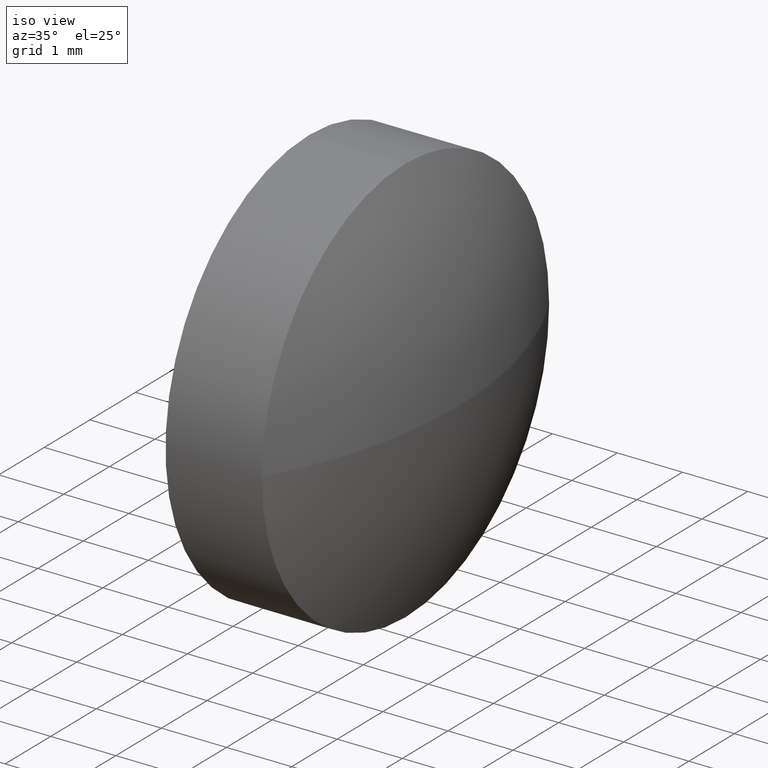
[diagram: clean part render]
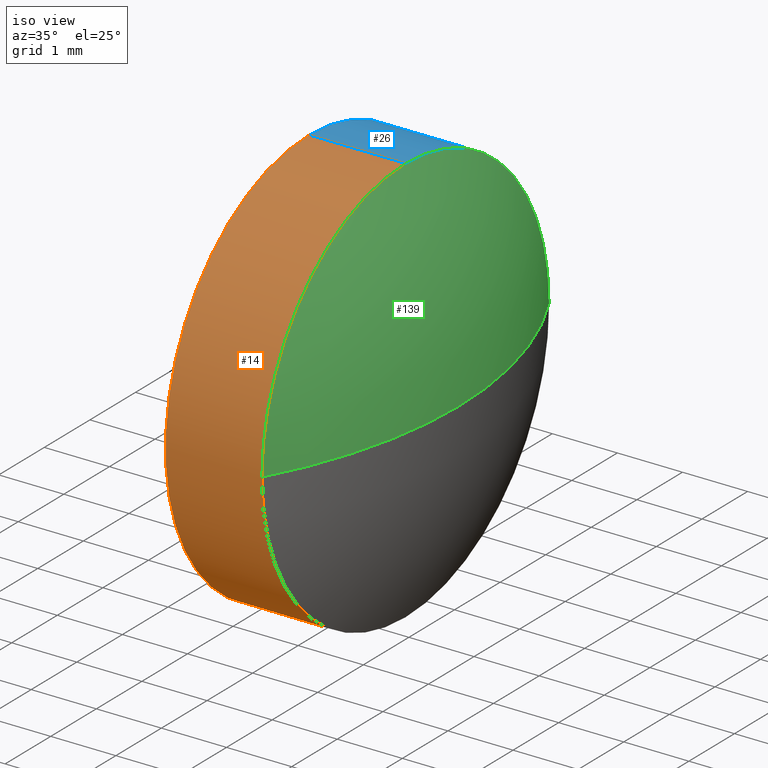
[diagram: same view with three faces highlighted in distinct colors, each labeled with its STEP entity id]
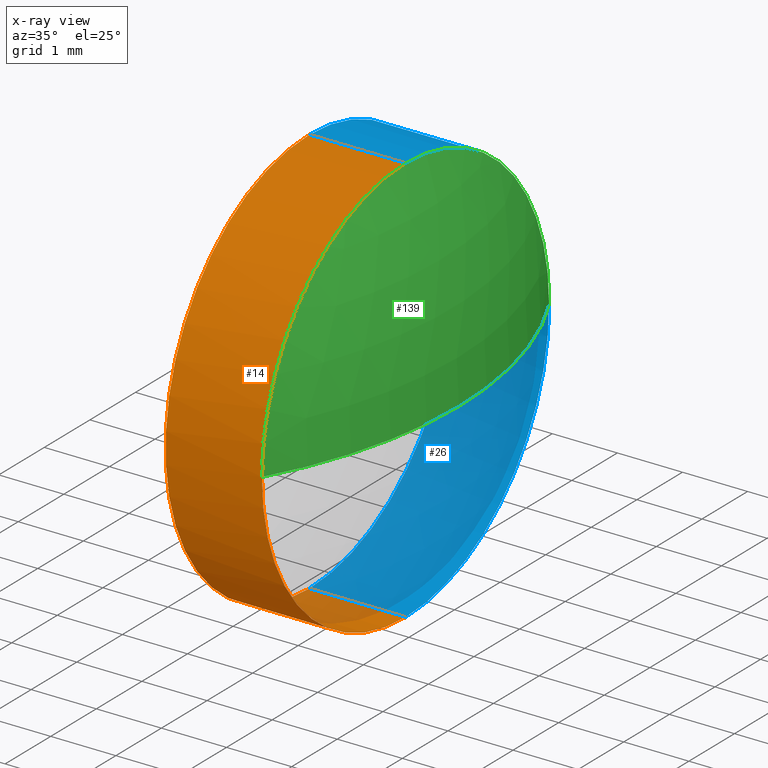
[diagram: x-ray of the same camera — body ghosted, the three highlighted faces saturated]
A machine part, iso view with three faces highlighted in distinct colors.
The next image is the same camera in x-ray (body ghosted, the three faces saturated) — at least one of them is partly hidden behind the body in this view.
Their STEP definitions:

[orange] entity #14 — the highlighted cylindrical surface (partial cylindrical patch) has radius 3.15 mm, axis along (-1, -0, -0).
#6 = CARTESIAN_POINT ( 'NONE',  ( 533.7935078641276000, 77.22052637251874800, 0.0000000000000000000 ) ) ;
#11 = EDGE_CURVE ( 'NONE', #169, #25, #64, .T. ) ;
#12 = VECTOR ( 'NONE', #132, 1000.000000000000000 ) ;
#14 = ADVANCED_FACE ( 'NONE', ( #55 ), #92, .T. ) ;
#17 = VERTEX_POINT ( 'NONE', #128 ) ;
#19 = DIRECTION ( 'NONE',  ( -1.000000000000000000, -0.0000000000000000000, -0.0000000000000000000 ) ) ;
#20 = CARTESIAN_POINT ( 'NONE',  ( 532.3135078641275900, 77.22052637251874800, -3.149999999999999900 ) ) ;
#21 = VERTEX_POINT ( 'NONE', #62 ) ;
#25 = VERTEX_POINT ( 'NONE', #111 ) ;
#28 = VECTOR ( 'NONE', #34, 1000.000000000000000 ) ;
#30 = AXIS2_PLACEMENT_3D ( 'NONE', #35, #50, #153 ) ;
#34 = DIRECTION ( 'NONE',  ( -1.000000000000000000, -0.0000000000000000000, -0.0000000000000000000 ) ) ;
#35 = CARTESIAN_POINT ( 'NONE',  ( 533.7935078641276000, 77.22052637251874800, 0.0000000000000000000 ) ) ;
#40 = LINE ( 'NONE', #87, #12 ) ;
#43 = AXIS2_PLACEMENT_3D ( 'NONE', #6, #121, #120 ) ;
#45 = CARTESIAN_POINT ( 'NONE',  ( 531.4518796945430900, 77.22052637251874800, 3.149999999999999900 ) ) ;
#49 = CIRCLE ( 'NONE', #30, 3.149999999999999900 ) ;
#50 = DIRECTION ( 'NONE',  ( -1.000000000000000000, -0.0000000000000000000, -0.0000000000000000000 ) ) ;
#55 = FACE_OUTER_BOUND ( 'NONE', #98, .T. ) ;
#62 = CARTESIAN_POINT ( 'NONE',  ( 533.7935078641276000, 77.22052637251874800, -3.149999999999999900 ) ) ;
#63 = DIRECTION ( 'NONE',  ( 0.0000000000000000000, 0.0000000000000000000, 1.000000000000000000 ) ) ;
#64 = LINE ( 'NONE', #45, #28 ) ;
#74 = AXIS2_PLACEMENT_3D ( 'NONE', #168, #149, #63 ) ;
#87 = CARTESIAN_POINT ( 'NONE',  ( 531.4518796945430900, 77.22052637251874800, -3.149999999999999900 ) ) ;
#92 = CYLINDRICAL_SURFACE ( 'NONE', #142, 3.149999999999999900 ) ;
#97 = CIRCLE ( 'NONE', #43, 3.149999999999999900 ) ;
#98 = EDGE_LOOP ( 'NONE', ( #114, #105, #124, #134, #136 ) ) ;
#102 = CARTESIAN_POINT ( 'NONE',  ( 533.7935078641276000, 77.22052637251874800, 3.149999999999999900 ) ) ;
#105 = ORIENTED_EDGE ( 'NONE', *, *, #180, .T. ) ;
#111 = CARTESIAN_POINT ( 'NONE',  ( 532.3135078641275900, 77.22052637251874800, 3.149999999999999900 ) ) ;
#114 = ORIENTED_EDGE ( 'NONE', *, *, #126, .F. ) ;
#117 = CIRCLE ( 'NONE', #74, 3.149999999999999900 ) ;
#120 = DIRECTION ( 'NONE',  ( 0.0000000000000000000, 0.0000000000000000000, 1.000000000000000000 ) ) ;
#121 = DIRECTION ( 'NONE',  ( -1.000000000000000000, -0.0000000000000000000, -0.0000000000000000000 ) ) ;
#124 = ORIENTED_EDGE ( 'NONE', *, *, #183, .T. ) ;
#126 = EDGE_CURVE ( 'NONE', #21, #182, #40, .T. ) ;
#128 = CARTESIAN_POINT ( 'NONE',  ( 533.7935078641276000, 74.07052637251868500, -3.857637417314155800E-016 ) ) ;
#132 = DIRECTION ( 'NONE',  ( -1.000000000000000000, -0.0000000000000000000, -0.0000000000000000000 ) ) ;
#134 = ORIENTED_EDGE ( 'NONE', *, *, #11, .T. ) ;
#136 = ORIENTED_EDGE ( 'NONE', *, *, #172, .F. ) ;
#142 = AXIS2_PLACEMENT_3D ( 'NONE', #146, #19, #145 ) ;
#145 = DIRECTION ( 'NONE',  ( 0.0000000000000000000, 0.0000000000000000000, 1.000000000000000000 ) ) ;
#146 = CARTESIAN_POINT ( 'NONE',  ( 531.4518796945430900, 77.22052637251874800, 0.0000000000000000000 ) ) ;
#149 = DIRECTION ( 'NONE',  ( -1.000000000000000000, -0.0000000000000000000, -0.0000000000000000000 ) ) ;
#153 = DIRECTION ( 'NONE',  ( 0.0000000000000000000, 0.0000000000000000000, 1.000000000000000000 ) ) ;
#168 = CARTESIAN_POINT ( 'NONE',  ( 532.3135078641275900, 77.22052637251874800, 0.0000000000000000000 ) ) ;
#169 = VERTEX_POINT ( 'NONE', #102 ) ;
#172 = EDGE_CURVE ( 'NONE', #182, #25, #117, .T. ) ;
#180 = EDGE_CURVE ( 'NONE', #21, #17, #49, .T. ) ;
#182 = VERTEX_POINT ( 'NONE', #20 ) ;
#183 = EDGE_CURVE ( 'NONE', #17, #169, #97, .T. ) ;

[blue] entity #26 — the highlighted cylindrical surface (partial cylindrical patch) has radius 3.15 mm, axis along (-1, -0, -0).
#3 = CARTESIAN_POINT ( 'NONE',  ( 533.7935078641276000, 80.37052637251875400, 0.0000000000000000000 ) ) ;
#7 = ORIENTED_EDGE ( 'NONE', *, *, #160, .T. ) ;
#9 = EDGE_CURVE ( 'NONE', #25, #182, #185, .T. ) ;
#11 = EDGE_CURVE ( 'NONE', #169, #25, #64, .T. ) ;
#12 = VECTOR ( 'NONE', #132, 1000.000000000000000 ) ;
#13 = DIRECTION ( 'NONE',  ( -1.000000000000000000, -0.0000000000000000000, -0.0000000000000000000 ) ) ;
#20 = CARTESIAN_POINT ( 'NONE',  ( 532.3135078641275900, 77.22052637251874800, -3.149999999999999900 ) ) ;
#21 = VERTEX_POINT ( 'NONE', #62 ) ;
#25 = VERTEX_POINT ( 'NONE', #111 ) ;
#26 = ADVANCED_FACE ( 'NONE', ( #66 ), #166, .T. ) ;
#28 = VECTOR ( 'NONE', #34, 1000.000000000000000 ) ;
#33 = AXIS2_PLACEMENT_3D ( 'NONE', #95, #13, #109 ) ;
#34 = DIRECTION ( 'NONE',  ( -1.000000000000000000, -0.0000000000000000000, -0.0000000000000000000 ) ) ;
#36 = ORIENTED_EDGE ( 'NONE', *, *, #126, .T. ) ;
#38 = AXIS2_PLACEMENT_3D ( 'NONE', #104, #106, #133 ) ;
#40 = LINE ( 'NONE', #87, #12 ) ;
#42 = AXIS2_PLACEMENT_3D ( 'NONE', #83, #100, #70 ) ;
#44 = ORIENTED_EDGE ( 'NONE', *, *, #11, .F. ) ;
#45 = CARTESIAN_POINT ( 'NONE',  ( 531.4518796945430900, 77.22052637251874800, 3.149999999999999900 ) ) ;
#52 = ORIENTED_EDGE ( 'NONE', *, *, #9, .F. ) ;
#60 = CIRCLE ( 'NONE', #38, 3.149999999999999900 ) ;
#62 = CARTESIAN_POINT ( 'NONE',  ( 533.7935078641276000, 77.22052637251874800, -3.149999999999999900 ) ) ;
#64 = LINE ( 'NONE', #45, #28 ) ;
#65 = AXIS2_PLACEMENT_3D ( 'NONE', #164, #72, #141 ) ;
#66 = FACE_OUTER_BOUND ( 'NONE', #112, .T. ) ;
#70 = DIRECTION ( 'NONE',  ( 0.0000000000000000000, 0.0000000000000000000, 1.000000000000000000 ) ) ;
#72 = DIRECTION ( 'NONE',  ( -1.000000000000000000, -0.0000000000000000000, -0.0000000000000000000 ) ) ;
#82 = ORIENTED_EDGE ( 'NONE', *, *, #184, .T. ) ;
#83 = CARTESIAN_POINT ( 'NONE',  ( 532.3135078641275900, 77.22052637251874800, 0.0000000000000000000 ) ) ;
#87 = CARTESIAN_POINT ( 'NONE',  ( 531.4518796945430900, 77.22052637251874800, -3.149999999999999900 ) ) ;
#95 = CARTESIAN_POINT ( 'NONE',  ( 533.7935078641276000, 77.22052637251874800, 0.0000000000000000000 ) ) ;
#100 = DIRECTION ( 'NONE',  ( -1.000000000000000000, -0.0000000000000000000, -0.0000000000000000000 ) ) ;
#102 = CARTESIAN_POINT ( 'NONE',  ( 533.7935078641276000, 77.22052637251874800, 3.149999999999999900 ) ) ;
#104 = CARTESIAN_POINT ( 'NONE',  ( 533.7935078641276000, 77.22052637251874800, 0.0000000000000000000 ) ) ;
#106 = DIRECTION ( 'NONE',  ( -1.000000000000000000, -0.0000000000000000000, -0.0000000000000000000 ) ) ;
#109 = DIRECTION ( 'NONE',  ( 0.0000000000000000000, 0.0000000000000000000, 1.000000000000000000 ) ) ;
#111 = CARTESIAN_POINT ( 'NONE',  ( 532.3135078641275900, 77.22052637251874800, 3.149999999999999900 ) ) ;
#112 = EDGE_LOOP ( 'NONE', ( #7, #36, #52, #44, #82 ) ) ;
#126 = EDGE_CURVE ( 'NONE', #21, #182, #40, .T. ) ;
#127 = VERTEX_POINT ( 'NONE', #3 ) ;
#132 = DIRECTION ( 'NONE',  ( -1.000000000000000000, -0.0000000000000000000, -0.0000000000000000000 ) ) ;
#133 = DIRECTION ( 'NONE',  ( 0.0000000000000000000, 0.0000000000000000000, 1.000000000000000000 ) ) ;
#141 = DIRECTION ( 'NONE',  ( 0.0000000000000000000, 0.0000000000000000000, 1.000000000000000000 ) ) ;
#160 = EDGE_CURVE ( 'NONE', #127, #21, #60, .T. ) ;
#164 = CARTESIAN_POINT ( 'NONE',  ( 531.4518796945430900, 77.22052637251874800, 0.0000000000000000000 ) ) ;
#166 = CYLINDRICAL_SURFACE ( 'NONE', #65, 3.149999999999999900 ) ;
#169 = VERTEX_POINT ( 'NONE', #102 ) ;
#177 = CIRCLE ( 'NONE', #33, 3.149999999999999900 ) ;
#182 = VERTEX_POINT ( 'NONE', #20 ) ;
#184 = EDGE_CURVE ( 'NONE', #169, #127, #177, .T. ) ;
#185 = CIRCLE ( 'NONE', #42, 3.149999999999999900 ) ;

[green] entity #139 — the highlighted spherical surface has radius 6.4603 mm.
#2 = DIRECTION ( 'NONE',  ( 1.000000000000000000, 0.0000000000000000000, 0.0000000000000000000 ) ) ;
#3 = CARTESIAN_POINT ( 'NONE',  ( 533.7935078641276000, 80.37052637251875400, 0.0000000000000000000 ) ) ;
#4 = ORIENTED_EDGE ( 'NONE', *, *, #59, .F. ) ;
#5 = DIRECTION ( 'NONE',  ( 0.0000000000000000000, 1.000000000000000000, 0.0000000000000000000 ) ) ;
#6 = CARTESIAN_POINT ( 'NONE',  ( 533.7935078641276000, 77.22052637251874800, 0.0000000000000000000 ) ) ;
#13 = DIRECTION ( 'NONE',  ( -1.000000000000000000, -0.0000000000000000000, -0.0000000000000000000 ) ) ;
#17 = VERTEX_POINT ( 'NONE', #128 ) ;
#24 = CARTESIAN_POINT ( 'NONE',  ( 534.6135078641276600, 77.22052637251867700, 0.0000000000000000000 ) ) ;
#32 = AXIS2_PLACEMENT_3D ( 'NONE', #73, #76, #2 ) ;
#33 = AXIS2_PLACEMENT_3D ( 'NONE', #95, #13, #109 ) ;
#37 = AXIS2_PLACEMENT_3D ( 'NONE', #179, #113, #85 ) ;
#43 = AXIS2_PLACEMENT_3D ( 'NONE', #6, #121, #120 ) ;
#56 = EDGE_LOOP ( 'NONE', ( #4, #143, #119, #58 ) ) ;
#58 = ORIENTED_EDGE ( 'NONE', *, *, #183, .F. ) ;
#59 = EDGE_CURVE ( 'NONE', #151, #17, #122, .T. ) ;
#73 = CARTESIAN_POINT ( 'NONE',  ( 528.1532029860789000, 77.22052637251867700, 0.0000000000000000000 ) ) ;
#76 = DIRECTION ( 'NONE',  ( -0.0000000000000000000, 0.0000000000000000000, 1.000000000000000000 ) ) ;
#85 = DIRECTION ( 'NONE',  ( 0.0000000000000000000, 1.000000000000000000, 1.224646799147353700E-016 ) ) ;
#89 = CIRCLE ( 'NONE', #32, 6.460304878048717100 ) ;
#91 = EDGE_CURVE ( 'NONE', #151, #127, #89, .T. ) ;
#95 = CARTESIAN_POINT ( 'NONE',  ( 533.7935078641276000, 77.22052637251874800, 0.0000000000000000000 ) ) ;
#97 = CIRCLE ( 'NONE', #43, 3.149999999999999900 ) ;
#102 = CARTESIAN_POINT ( 'NONE',  ( 533.7935078641276000, 77.22052637251874800, 3.149999999999999900 ) ) ;
#103 = CARTESIAN_POINT ( 'NONE',  ( 528.1532029860789000, 77.22052637251867700, 0.0000000000000000000 ) ) ;
#107 = FACE_OUTER_BOUND ( 'NONE', #56, .T. ) ;
#109 = DIRECTION ( 'NONE',  ( 0.0000000000000000000, 0.0000000000000000000, 1.000000000000000000 ) ) ;
#113 = DIRECTION ( 'NONE',  ( 0.0000000000000000000, 1.224646799147353200E-016, -1.000000000000000000 ) ) ;
#119 = ORIENTED_EDGE ( 'NONE', *, *, #184, .F. ) ;
#120 = DIRECTION ( 'NONE',  ( 0.0000000000000000000, 0.0000000000000000000, 1.000000000000000000 ) ) ;
#121 = DIRECTION ( 'NONE',  ( -1.000000000000000000, -0.0000000000000000000, -0.0000000000000000000 ) ) ;
#122 = CIRCLE ( 'NONE', #37, 6.460304878048717100 ) ;
#127 = VERTEX_POINT ( 'NONE', #3 ) ;
#128 = CARTESIAN_POINT ( 'NONE',  ( 533.7935078641276000, 74.07052637251868500, -3.857637417314155800E-016 ) ) ;
#137 = AXIS2_PLACEMENT_3D ( 'NONE', #103, #148, #5 ) ;
#139 = ADVANCED_FACE ( 'NONE', ( #107 ), #163, .T. ) ;
#143 = ORIENTED_EDGE ( 'NONE', *, *, #91, .T. ) ;
#148 = DIRECTION ( 'NONE',  ( -0.0000000000000000000, 0.0000000000000000000, -1.000000000000000000 ) ) ;
#151 = VERTEX_POINT ( 'NONE', #24 ) ;
#163 = SPHERICAL_SURFACE ( 'NONE', #137, 6.460304878048719800 ) ;
#169 = VERTEX_POINT ( 'NONE', #102 ) ;
#177 = CIRCLE ( 'NONE', #33, 3.149999999999999900 ) ;
#179 = CARTESIAN_POINT ( 'NONE',  ( 528.1532029860789000, 77.22052637251867700, 0.0000000000000000000 ) ) ;
#183 = EDGE_CURVE ( 'NONE', #17, #169, #97, .T. ) ;
#184 = EDGE_CURVE ( 'NONE', #169, #127, #177, .T. ) ;